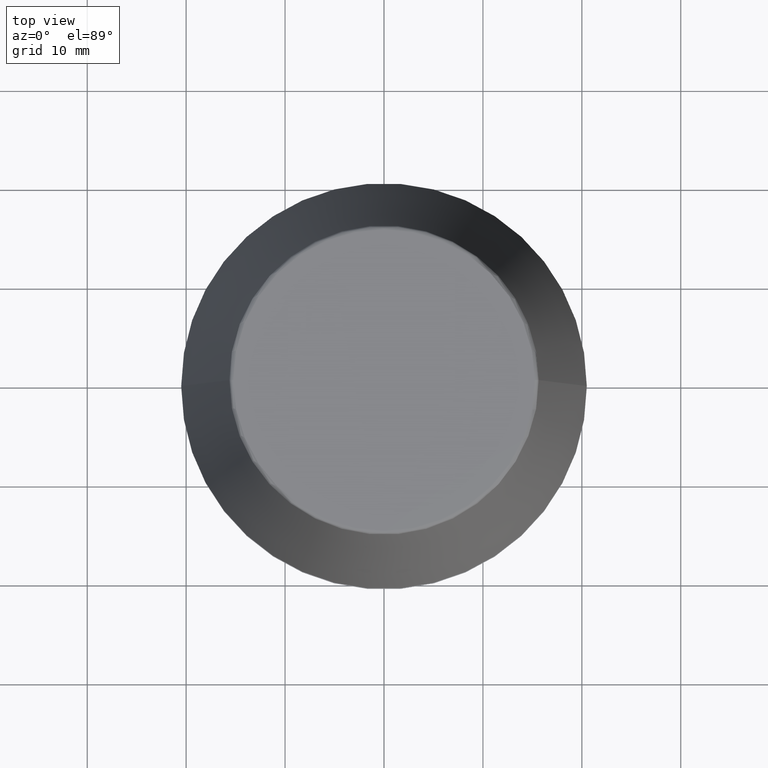
[diagram: clean part render]
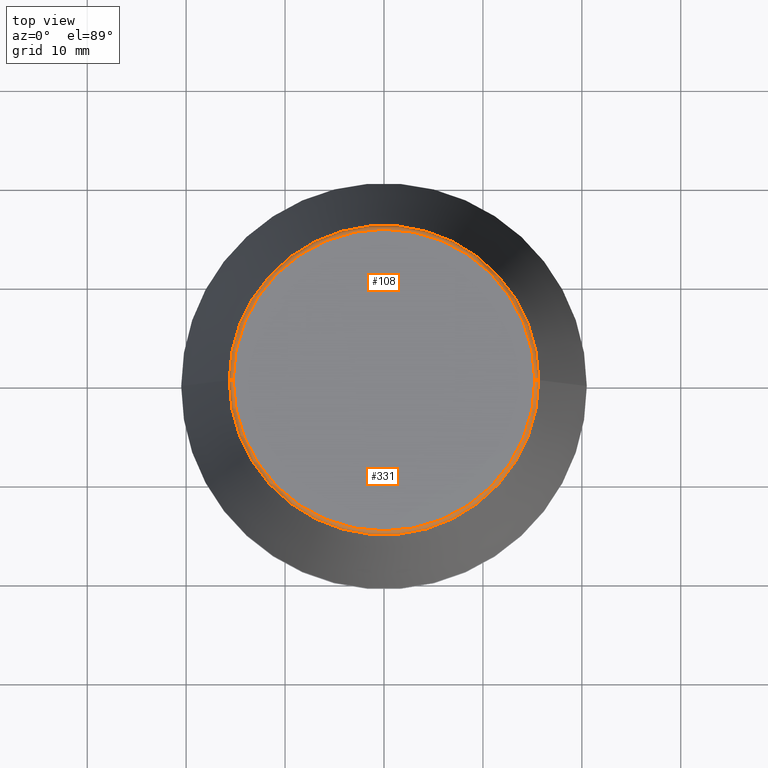
[diagram: same view with one multi-face feature highlighted, each face labeled with its STEP entity id]
A machine part, top view. The highlighted faces form ONE feature: a constant-radius fillet chain: 2 tangent blend faces with common blend radius 0.4 mm. The faces share edges in the B-rep.
Their STEP definitions:
[1] entity #331 (Torus):
#1 = DIRECTION ( 'NONE',  ( -0.0000000000000000000, -0.0000000000000000000, 1.000000000000000000 ) ) ;
#12 = CARTESIAN_POINT ( 'NONE',  ( 15.24773554530077600, 0.0000000000000000000, 46.00000000000000000 ) ) ;
#37 = EDGE_CURVE ( 'NONE', #340, #246, #212, .T. ) ;
#49 = EDGE_CURVE ( 'NONE', #281, #340, #372, .T. ) ;
#54 = CARTESIAN_POINT ( 'NONE',  ( -15.24773554530077600, 1.891563625393435400E-015, 46.00000000000000000 ) ) ;
#56 = ORIENTED_EDGE ( 'NONE', *, *, #98, .F. ) ;
#68 = ORIENTED_EDGE ( 'NONE', *, *, #49, .T. ) ;
#72 = AXIS2_PLACEMENT_3D ( 'NONE', #156, #126, #325 ) ;
#76 = DIRECTION ( 'NONE',  ( 0.0000000000000000000, -1.000000000000000000, 0.0000000000000000000 ) ) ;
#90 = AXIS2_PLACEMENT_3D ( 'NONE', #287, #76, #245 ) ;
#97 = ORIENTED_EDGE ( 'NONE', *, *, #37, .T. ) ;
#98 = EDGE_CURVE ( 'NONE', #359, #246, #310, .T. ) ;
#102 = DIRECTION ( 'NONE',  ( 1.000000000000000000, 0.0000000000000000000, 0.0000000000000000000 ) ) ;
#109 = DIRECTION ( 'NONE',  ( 1.000000000000000000, 0.0000000000000000000, 0.0000000000000000000 ) ) ;
#126 = DIRECTION ( 'NONE',  ( -0.0000000000000000000, -0.0000000000000000000, 1.000000000000000000 ) ) ;
#155 = AXIS2_PLACEMENT_3D ( 'NONE', #160, #387, #192 ) ;
#156 = CARTESIAN_POINT ( 'NONE',  ( 0.0000000000000000000, 0.0000000000000000000, 45.65566924038402900 ) ) ;
#160 = CARTESIAN_POINT ( 'NONE',  ( -15.24773554530077600, 1.867309052979791600E-015, 45.60000000000000100 ) ) ;
#178 = CARTESIAN_POINT ( 'NONE',  ( 0.0000000000000000000, 0.0000000000000000000, 46.00000000000000000 ) ) ;
#182 = EDGE_CURVE ( 'NONE', #281, #359, #272, .T. ) ;
#192 = DIRECTION ( 'NONE',  ( -1.000000000000000000, 1.224646799147353900E-016, 0.0000000000000000000 ) ) ;
#194 = CARTESIAN_POINT ( 'NONE',  ( 15.64384277279740400, 2.213191991290356800E-015, 45.65566924038402900 ) ) ;
#205 = AXIS2_PLACEMENT_3D ( 'NONE', #178, #291, #102 ) ;
#208 = CARTESIAN_POINT ( 'NONE',  ( 0.0000000000000000000, 0.0000000000000000000, 45.60000000000000100 ) ) ;
#212 = CIRCLE ( 'NONE', #90, 0.3999999999999975800 ) ;
#226 = CARTESIAN_POINT ( 'NONE',  ( -15.64384277279740400, 0.0000000000000000000, 45.65566924038402900 ) ) ;
#245 = DIRECTION ( 'NONE',  ( 0.0000000000000000000, 0.0000000000000000000, -1.000000000000000000 ) ) ;
#246 = VERTEX_POINT ( 'NONE', #12 ) ;
#272 = CIRCLE ( 'NONE', #155, 0.3999999999999975800 ) ;
#278 = FACE_OUTER_BOUND ( 'NONE', #342, .T. ) ;
#281 = VERTEX_POINT ( 'NONE', #226 ) ;
#287 = CARTESIAN_POINT ( 'NONE',  ( 15.24773554530077600, 0.0000000000000000000, 45.60000000000000100 ) ) ;
#291 = DIRECTION ( 'NONE',  ( -0.0000000000000000000, -0.0000000000000000000, 1.000000000000000000 ) ) ;
#310 = CIRCLE ( 'NONE', #205, 15.24773554530077600 ) ;
#325 = DIRECTION ( 'NONE',  ( 1.000000000000000000, 0.0000000000000000000, 0.0000000000000000000 ) ) ;
#331 = ADVANCED_FACE ( 'NONE', ( #278 ), #349, .T. ) ;
#340 = VERTEX_POINT ( 'NONE', #194 ) ;
#342 = EDGE_LOOP ( 'NONE', ( #376, #68, #97, #56 ) ) ;
#349 = TOROIDAL_SURFACE ( 'NONE', #384, 15.24773554530077600, 0.3999999999999991900 ) ;
#359 = VERTEX_POINT ( 'NONE', #54 ) ;
#372 = CIRCLE ( 'NONE', #72, 15.64384277279740400 ) ;
#376 = ORIENTED_EDGE ( 'NONE', *, *, #182, .F. ) ;
#384 = AXIS2_PLACEMENT_3D ( 'NONE', #208, #1, #109 ) ;
#387 = DIRECTION ( 'NONE',  ( 1.224646799147353200E-016, 1.000000000000000000, 0.0000000000000000000 ) ) ;
[2] entity #108 (Torus):
#12 = CARTESIAN_POINT ( 'NONE',  ( 15.24773554530077600, 0.0000000000000000000, 46.00000000000000000 ) ) ;
#31 = EDGE_CURVE ( 'NONE', #246, #359, #223, .T. ) ;
#37 = EDGE_CURVE ( 'NONE', #340, #246, #212, .T. ) ;
#54 = CARTESIAN_POINT ( 'NONE',  ( -15.24773554530077600, 1.891563625393435400E-015, 46.00000000000000000 ) ) ;
#76 = DIRECTION ( 'NONE',  ( 0.0000000000000000000, -1.000000000000000000, 0.0000000000000000000 ) ) ;
#77 = AXIS2_PLACEMENT_3D ( 'NONE', #276, #323, #352 ) ;
#82 = DIRECTION ( 'NONE',  ( -0.0000000000000000000, -0.0000000000000000000, 1.000000000000000000 ) ) ;
#90 = AXIS2_PLACEMENT_3D ( 'NONE', #287, #76, #245 ) ;
#108 = ADVANCED_FACE ( 'NONE', ( #302 ), #315, .T. ) ;
#116 = ORIENTED_EDGE ( 'NONE', *, *, #37, .F. ) ;
#144 = EDGE_CURVE ( 'NONE', #340, #281, #283, .T. ) ;
#151 = CARTESIAN_POINT ( 'NONE',  ( 0.0000000000000000000, 0.0000000000000000000, 45.65566924038402900 ) ) ;
#155 = AXIS2_PLACEMENT_3D ( 'NONE', #160, #387, #192 ) ;
#160 = CARTESIAN_POINT ( 'NONE',  ( -15.24773554530077600, 1.867309052979791600E-015, 45.60000000000000100 ) ) ;
#182 = EDGE_CURVE ( 'NONE', #281, #359, #272, .T. ) ;
#187 = DIRECTION ( 'NONE',  ( -0.0000000000000000000, -0.0000000000000000000, 1.000000000000000000 ) ) ;
#192 = DIRECTION ( 'NONE',  ( -1.000000000000000000, 1.224646799147353900E-016, 0.0000000000000000000 ) ) ;
#194 = CARTESIAN_POINT ( 'NONE',  ( 15.64384277279740400, 2.213191991290356800E-015, 45.65566924038402900 ) ) ;
#202 = ORIENTED_EDGE ( 'NONE', *, *, #31, .F. ) ;
#203 = AXIS2_PLACEMENT_3D ( 'NONE', #151, #82, #329 ) ;
#212 = CIRCLE ( 'NONE', #90, 0.3999999999999975800 ) ;
#221 = CARTESIAN_POINT ( 'NONE',  ( 0.0000000000000000000, 0.0000000000000000000, 45.60000000000000100 ) ) ;
#223 = CIRCLE ( 'NONE', #77, 15.24773554530077600 ) ;
#226 = CARTESIAN_POINT ( 'NONE',  ( -15.64384277279740400, 0.0000000000000000000, 45.65566924038402900 ) ) ;
#229 = AXIS2_PLACEMENT_3D ( 'NONE', #221, #187, #327 ) ;
#240 = ORIENTED_EDGE ( 'NONE', *, *, #182, .T. ) ;
#245 = DIRECTION ( 'NONE',  ( 0.0000000000000000000, 0.0000000000000000000, -1.000000000000000000 ) ) ;
#246 = VERTEX_POINT ( 'NONE', #12 ) ;
#272 = CIRCLE ( 'NONE', #155, 0.3999999999999975800 ) ;
#276 = CARTESIAN_POINT ( 'NONE',  ( 0.0000000000000000000, 0.0000000000000000000, 46.00000000000000000 ) ) ;
#281 = VERTEX_POINT ( 'NONE', #226 ) ;
#283 = CIRCLE ( 'NONE', #203, 15.64384277279740400 ) ;
#287 = CARTESIAN_POINT ( 'NONE',  ( 15.24773554530077600, 0.0000000000000000000, 45.60000000000000100 ) ) ;
#302 = FACE_OUTER_BOUND ( 'NONE', #314, .T. ) ;
#314 = EDGE_LOOP ( 'NONE', ( #377, #240, #202, #116 ) ) ;
#315 = TOROIDAL_SURFACE ( 'NONE', #229, 15.24773554530077600, 0.3999999999999991900 ) ;
#323 = DIRECTION ( 'NONE',  ( -0.0000000000000000000, -0.0000000000000000000, 1.000000000000000000 ) ) ;
#327 = DIRECTION ( 'NONE',  ( 1.000000000000000000, 0.0000000000000000000, 0.0000000000000000000 ) ) ;
#329 = DIRECTION ( 'NONE',  ( 1.000000000000000000, 0.0000000000000000000, 0.0000000000000000000 ) ) ;
#340 = VERTEX_POINT ( 'NONE', #194 ) ;
#352 = DIRECTION ( 'NONE',  ( 1.000000000000000000, 0.0000000000000000000, 0.0000000000000000000 ) ) ;
#359 = VERTEX_POINT ( 'NONE', #54 ) ;
#377 = ORIENTED_EDGE ( 'NONE', *, *, #144, .T. ) ;
#387 = DIRECTION ( 'NONE',  ( 1.224646799147353200E-016, 1.000000000000000000, 0.0000000000000000000 ) ) ;